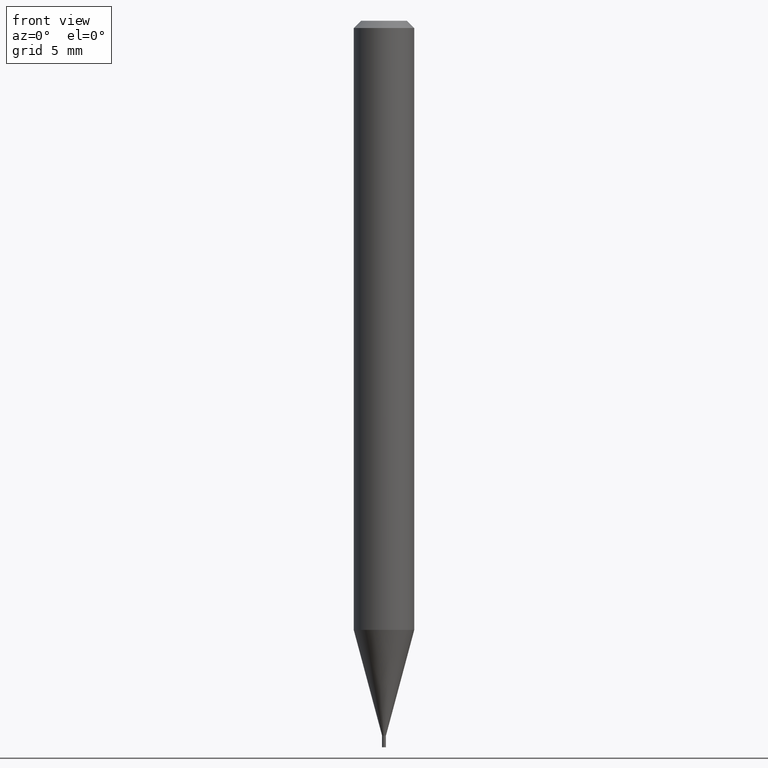
[diagram: clean part render]
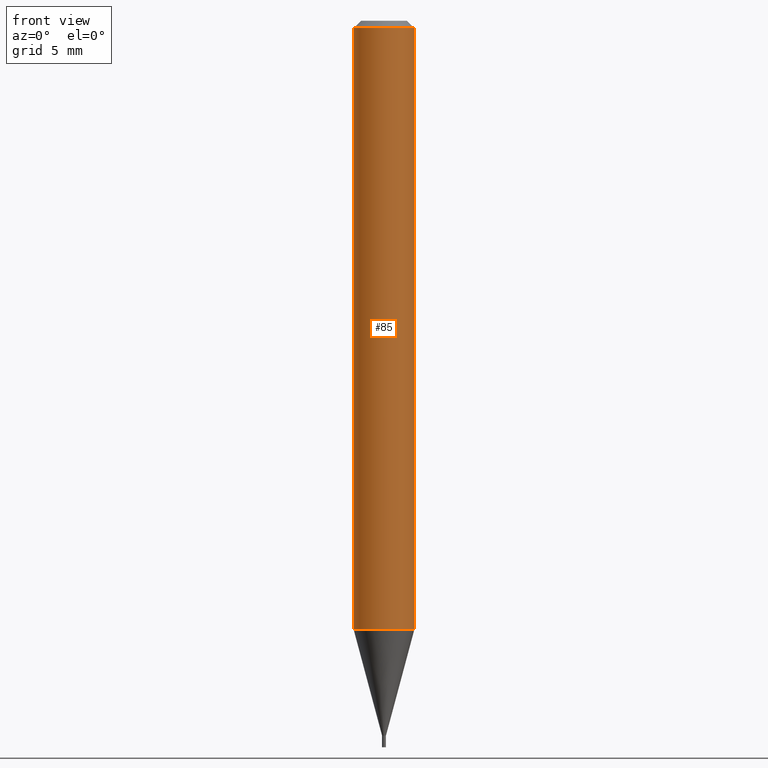
[diagram: same view with one face highlighted and labeled with its STEP entity id]
A machine part, front view. The second image highlights one B-rep face of the part: STEP entity #85.
In plain terms, the highlighted cylindrical surface (edge-blend (fillet) strip) has radius 1.5875 mm, axis along (-0, 0, 1).
Its self-contained STEP definition (entity closure, byte-faithful):
#2 = VERTEX_POINT ( 'NONE', #280 ) ;
#8 = DIRECTION ( 'NONE',  ( 1.000000000000000000, -6.982962677686266711E-15, 4.876176775795935793E-29 ) ) ;
#20 = VECTOR ( 'NONE', #394, 39.37007874015748143 ) ;
#22 = EDGE_CURVE ( 'NONE', #26, #458, #452, .T. ) ;
#26 = VERTEX_POINT ( 'NONE', #209 ) ;
#37 = AXIS2_PLACEMENT_3D ( 'NONE', #253, #391, #436 ) ;
#62 = ORIENTED_EDGE ( 'NONE', *, *, #433, .T. ) ;
#80 = CARTESIAN_POINT ( 'NONE',  ( -0.06250000000000000000, 4.440892098500626162E-16, -3.074334431409316114E-30 ) ) ;
#85 = ADVANCED_FACE ( 'NONE', ( #182 ), #360, .T. ) ;
#119 = EDGE_CURVE ( 'NONE', #2, #26, #143, .T. ) ;
#138 = ORIENTED_EDGE ( 'NONE', *, *, #22, .F. ) ;
#143 = LINE ( 'NONE', #80, #20 ) ;
#149 = VECTOR ( 'NONE', #269, 39.37007874015748143 ) ;
#154 = LINE ( 'NONE', #191, #149 ) ;
#162 = EDGE_CURVE ( 'NONE', #410, #458, #154, .T. ) ;
#178 = CARTESIAN_POINT ( 'NONE',  ( 0.06250000000000000000, -4.827584057098760794E-15, -1.257675027757220398 ) ) ;
#182 = FACE_OUTER_BOUND ( 'NONE', #426, .T. ) ;
#191 = CARTESIAN_POINT ( 'NONE',  ( 0.06250000000000000000, -4.364351673553916694E-16, 3.047610484872459871E-30 ) ) ;
#206 = DIRECTION ( 'NONE',  ( 1.000000000000000000, -6.982962677686266711E-15, 0.000000000000000000 ) ) ;
#209 = CARTESIAN_POINT ( 'NONE',  ( -0.06250000000000000000, -1.777671345062946077E-15, -0.01499999999999999944 ) ) ;
#210 = ORIENTED_EDGE ( 'NONE', *, *, #162, .T. ) ;
#229 = AXIS2_PLACEMENT_3D ( 'NONE', #382, #390, #206 ) ;
#246 = CARTESIAN_POINT ( 'NONE',  ( 0.000000000000000000, 0.000000000000000000, 0.000000000000000000 ) ) ;
#253 = CARTESIAN_POINT ( 'NONE',  ( 3.075605048698308090E-29, -4.391148889743369914E-15, -1.257675027757220398 ) ) ;
#259 = CARTESIAN_POINT ( 'NONE',  ( 0.06250000000000000000, -4.888073874380388472E-16, -0.01499999999999999944 ) ) ;
#269 = DIRECTION ( 'NONE',  ( -2.445468806185136877E-29, 3.491481338843145188E-15, 1.000000000000000000 ) ) ;
#276 = ORIENTED_EDGE ( 'NONE', *, *, #119, .F. ) ;
#280 = CARTESIAN_POINT ( 'NONE',  ( -0.06250000000000000000, -3.947059679893307297E-15, -1.257675027757220398 ) ) ;
#302 = CIRCLE ( 'NONE', #37, 0.06250000000000000000 ) ;
#330 = DIRECTION ( 'NONE',  ( -2.445468806185136597E-29, 3.491481338843145583E-15, 1.000000000000000000 ) ) ;
#337 = AXIS2_PLACEMENT_3D ( 'NONE', #246, #330, #8 ) ;
#360 = CYLINDRICAL_SURFACE ( 'NONE', #337, 0.06250000000000000000 ) ;
#382 = CARTESIAN_POINT ( 'NONE',  ( 3.668203209277705088E-31, -5.237222008264718399E-17, -0.01499999999999999944 ) ) ;
#390 = DIRECTION ( 'NONE',  ( -2.445468806185136597E-29, 3.491481338843145583E-15, 1.000000000000000000 ) ) ;
#391 = DIRECTION ( 'NONE',  ( -2.445468806185136597E-29, 3.491481338843145583E-15, 1.000000000000000000 ) ) ;
#394 = DIRECTION ( 'NONE',  ( -2.445468806185136877E-29, 3.491481338843145188E-15, 1.000000000000000000 ) ) ;
#410 = VERTEX_POINT ( 'NONE', #178 ) ;
#426 = EDGE_LOOP ( 'NONE', ( #276, #62, #210, #138 ) ) ;
#433 = EDGE_CURVE ( 'NONE', #2, #410, #302, .T. ) ;
#436 = DIRECTION ( 'NONE',  ( 1.000000000000000000, -6.982962677686262766E-15, 0.000000000000000000 ) ) ;
#452 = CIRCLE ( 'NONE', #229, 0.06250000000000000000 ) ;
#458 = VERTEX_POINT ( 'NONE', #259 ) ;